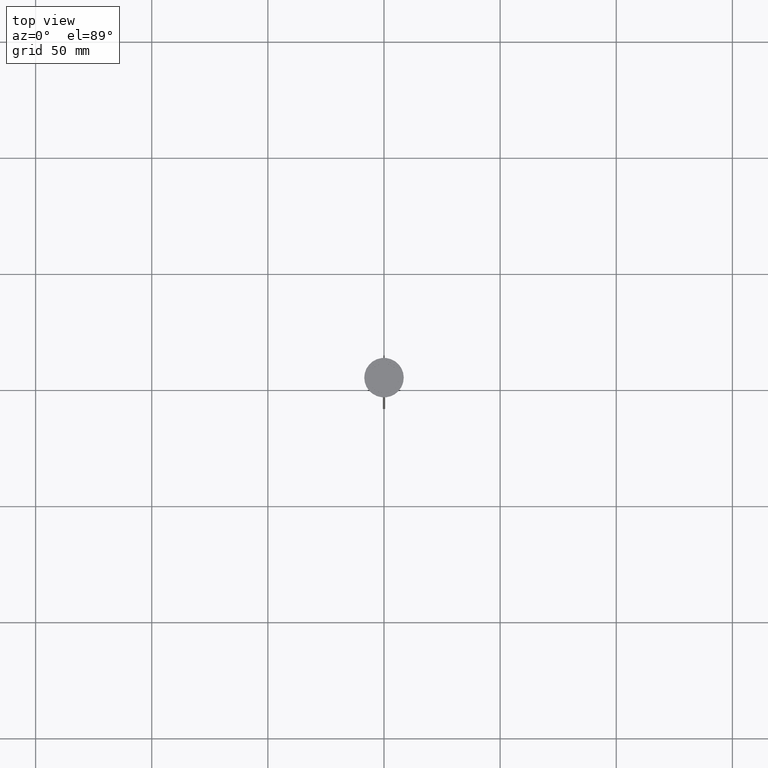
[diagram: clean part render]
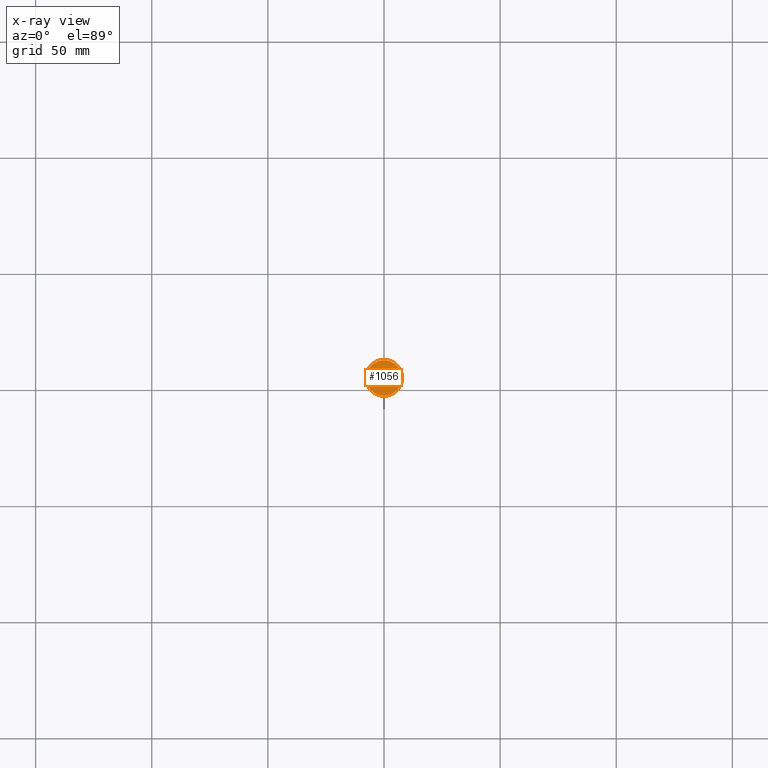
[diagram: x-ray — body ghosted, one internal face saturated and labeled with its STEP entity id]
A machine part, top view, then the same camera in x-ray: the body is ghosted and one INTERNAL B-rep face — a face not visible from any outside direction — is saturated and labeled: STEP entity #1056.
In plain terms, the highlighted planar face has unit normal (0, 0, -1).
Its self-contained STEP definition (entity closure, byte-faithful):
#20 = AXIS2_PLACEMENT_3D ( 'NONE', #1387, #208, #783 ) ;
#122 = ORIENTED_EDGE ( 'NONE', *, *, #490, .T. ) ;
#208 = DIRECTION ( 'NONE',  ( -0.000000000000000000, -0.000000000000000000, 1.000000000000000000 ) ) ;
#210 = CARTESIAN_POINT ( 'NONE',  ( 7.700000000000001954, 9.613477373306725302E-16, -12.00000000000000000 ) ) ;
#238 = VERTEX_POINT ( 'NONE', #210 ) ;
#386 = CARTESIAN_POINT ( 'NONE',  ( 0.000000000000000000, 0.000000000000000000, -12.00000000000000000 ) ) ;
#407 = DIRECTION ( 'NONE',  ( 0.000000000000000000, 0.000000000000000000, -1.000000000000000000 ) ) ;
#490 = EDGE_CURVE ( 'NONE', #238, #777, #2199, .T. ) ;
#533 = DIRECTION ( 'NONE',  ( -0.000000000000000000, -0.000000000000000000, 1.000000000000000000 ) ) ;
#615 = EDGE_LOOP ( 'NONE', ( #1392, #122 ) ) ;
#639 = EDGE_CURVE ( 'NONE', #777, #238, #1108, .T. ) ;
#739 = AXIS2_PLACEMENT_3D ( 'NONE', #386, #407, #2163 ) ;
#752 = PLANE ( 'NONE',  #739 ) ;
#777 = VERTEX_POINT ( 'NONE', #1613 ) ;
#783 = DIRECTION ( 'NONE',  ( -1.000000000000000000, 0.000000000000000000, 0.000000000000000000 ) ) ;
#1056 = ADVANCED_FACE ( 'NONE', ( #1385 ), #752, .F. ) ;
#1108 = CIRCLE ( 'NONE', #20, 7.700000000000001954 ) ;
#1322 = DIRECTION ( 'NONE',  ( -1.000000000000000000, 0.000000000000000000, 0.000000000000000000 ) ) ;
#1385 = FACE_OUTER_BOUND ( 'NONE', #615, .T. ) ;
#1387 = CARTESIAN_POINT ( 'NONE',  ( 0.000000000000000000, 0.000000000000000000, -12.00000000000000000 ) ) ;
#1392 = ORIENTED_EDGE ( 'NONE', *, *, #639, .T. ) ;
#1613 = CARTESIAN_POINT ( 'NONE',  ( -7.700000000000001954, 0.000000000000000000, -12.00000000000000000 ) ) ;
#1962 = AXIS2_PLACEMENT_3D ( 'NONE', #2102, #533, #1322 ) ;
#2102 = CARTESIAN_POINT ( 'NONE',  ( 0.000000000000000000, 0.000000000000000000, -12.00000000000000000 ) ) ;
#2163 = DIRECTION ( 'NONE',  ( -1.000000000000000000, 0.000000000000000000, -0.000000000000000000 ) ) ;
#2199 = CIRCLE ( 'NONE', #1962, 7.700000000000001954 ) ;